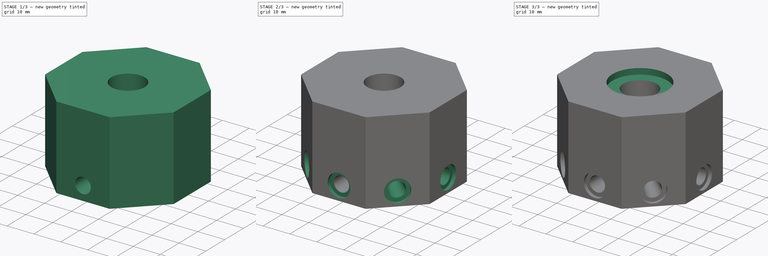
[diagram: build sequence overview — one tinted view per stage of 3, left to right]
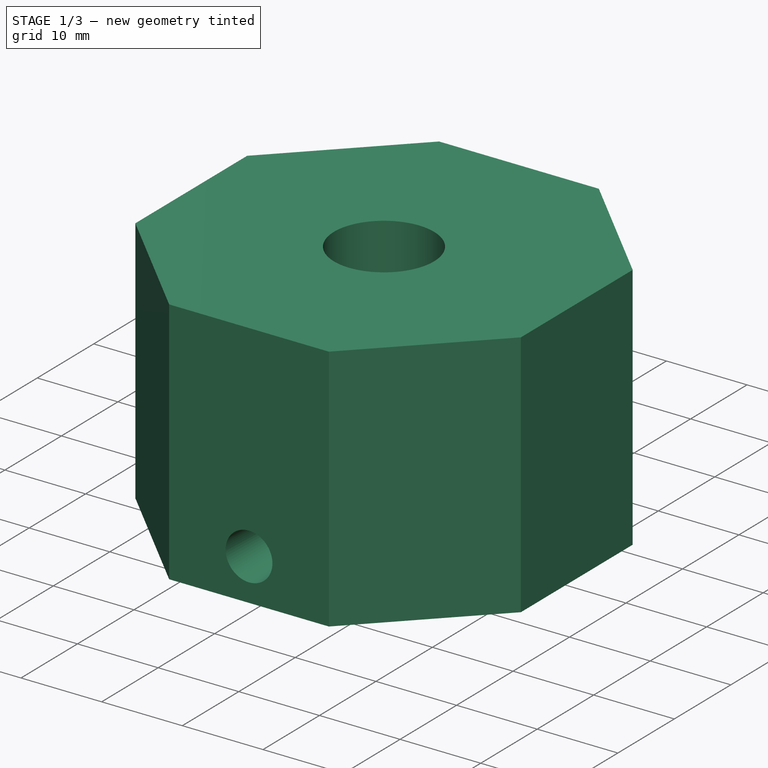
[diagram: stage 1 of 3 — iso view after this stage's code; geometry added in this stage tinted green]
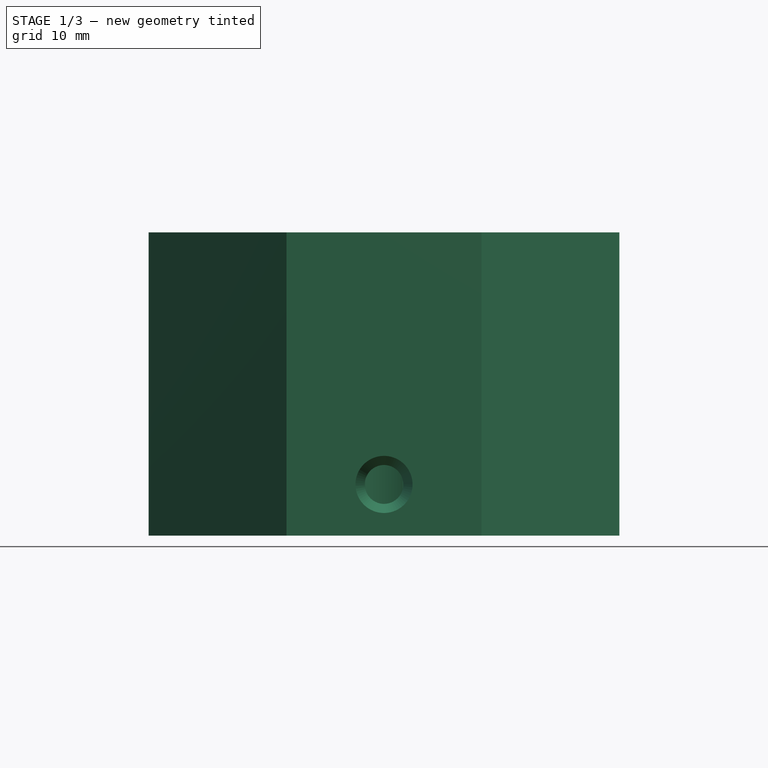
[diagram: stage 1 of 3 — front view after this stage's code; geometry added in this stage tinted green]
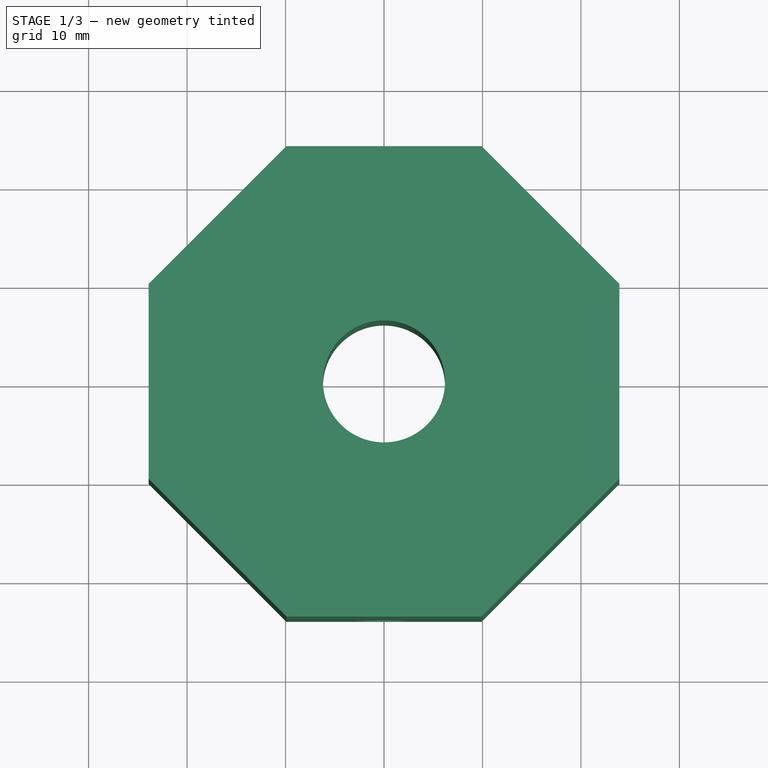
[diagram: stage 1 of 3 — top view after this stage's code; geometry added in this stage tinted green]
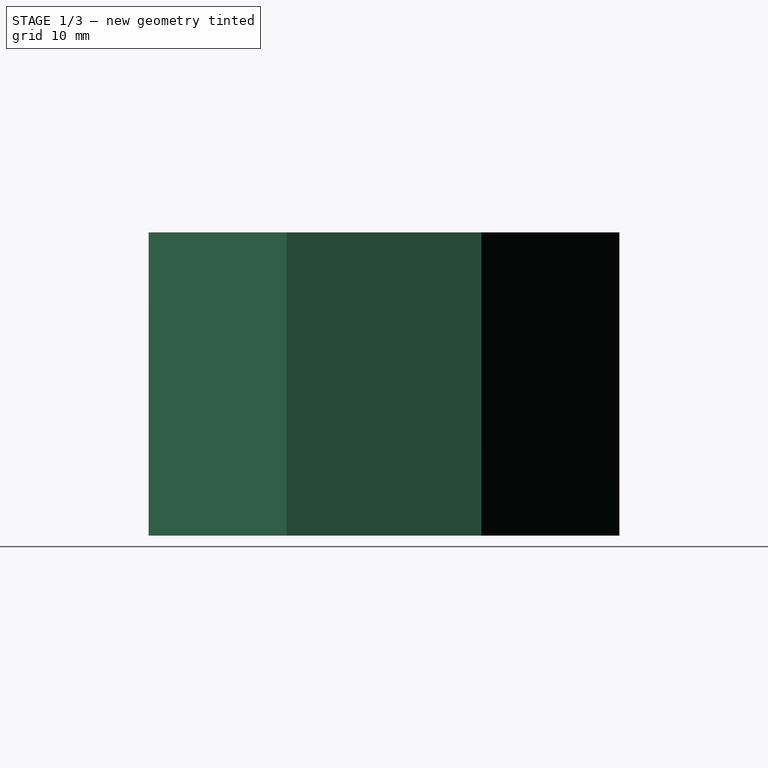
[diagram: stage 1 of 3 — right view after this stage's code; geometry added in this stage tinted green]
FCSTD DOCUMENT  (FreeCAD 0.21R33668 +26 (Git))
Label: LED Holder
License: All rights reserved
LicenseURL: http://en.wikipedia.org/wiki/All_rights_reserved
objects: Sketcher::SketchObject×5, PartDesign::Pocket×4, PartDesign::FeaturePython×2, Spreadsheet::Sheet×1, PartDesign::Pad×1, Part::Part2DObjectPython×1, PartDesign::Body×1
note: 19 computed .brp shape members not serialized (recipe doc carries the construction recipe); baked Part::Feature solids carry a one-line shape summary decoded from their .brp

FEATURE [Spreadsheet::Sheet] Data
  cells = A1='Part; B1='SP1; C1='SP2; D1='SP3; E1='SP4; F1='SP5; G1='Size (mm); H1='Shape; I1='External References; N1='Design specification; A2='LED holder; B2='base; C2='Octagon; D2='Side ; F2='Length; G2==P12 - P3; H2='Octagon with concentric circle; I2='Object; J2='Subpart; K2='Measure (mm); L2='Extra margin; N2='General; O2='Subpart; P2='Measure (mm); C3='Circle; F3='Diametre; G3==K8 + P3 * 2; H3='Circle; I3='LED; J3='Length with contacts; K3=15.8; L3=2; O3='General tolerance; P3=0.2; C4='Pad; F4='Depth; G4==35 - 2 * 2 - P3; I4='LED; J4='Diameter body; K4=8.12; O4='Wall thickness; P4=2; B5='Led Holder; C5='Distance to wall; F5='Length; G5==P11 - 2; H5='Circle; I5='LED; J5='Diameter Lens; K5=5.6; O5='Minimal thickness; P5=1; C6='LED hole; F6='Diametre; G6==K5 + P3; I6='LED; J6='Total Heightt; K6=5.8; N6='Cell; O6='Light Path length; P6=50; F7='Depth; G7=18; H7='Circle; I7='LED; J7='Body Heightt till contact; K7=1.5; O7='Light Path width; P7=5; C8='Body holder; F8='Diametre; G8==K4 + P3 * 1.5; I8='Glass Tube; J8='Exterior Diameter; K8=12; N8='Slide; O8='Height; P8=60; F9='Depth; G9==K7 - P3; H9='Circle; I9='Glass Tube; J9='Wall Thickness; K9=1; O9='Width; P9=60; B10='Spacing void Ring; F10='Diametre; G10==G3 + 8; I10='Glass Tube; J10='Interior Diameter; K10==K8 - 2 * K9; O10='Central Hole; P10=16; F11='Depth; G11=2.2; I11='Glass Tube; J11='Length; K11=35; N11='LED; O11='Distance to end of cell; P11==K10 / 2; I12='Tubing connector; J12='Connector Diameter; K12=5.1; O12='octagon side size; P12=20; I13='Tubing connector; J13='Connector Heightt; K13=13; I14='Tubing connector; J14='Stopper Diameter; K14=7.9; I15='Tubing connector; J15='Stopper Heightt; K15=2.7; I16='Glass window; J16='Width; K16=25.6; I17='Glass window; J17='Heightt; K17=25.6; I18='Glass window; J18='Thickness; K18=1; F19='<
FEATURE [Sketcher::SketchObject] Sketch
  FullyConstrained = true
  MapMode = 5
  Support = -> [XY_Plane]
  expr: Constraints[25] = <<Data>>.G2
  expr: Constraints[27] = <<Data>>.G3
  sketch-geometry (10):
    g0: LineSegment StartX=9.9 StartY=23.9007 StartZ=0 EndX=-9.9 EndY=23.9007 EndZ=0
    g1: LineSegment StartX=-9.9 StartY=23.9007 StartZ=0 EndX=-23.9007 EndY=9.9 EndZ=0
    g2: LineSegment StartX=-23.9007 StartY=9.9 StartZ=0 EndX=-23.9007 EndY=-9.9 EndZ=0
    g3: LineSegment StartX=-23.9007 StartY=-9.9 StartZ=0 EndX=-9.9 EndY=-23.9007 EndZ=0
    g4: LineSegment StartX=-9.9 StartY=-23.9007 StartZ=0 EndX=9.9 EndY=-23.9007 EndZ=0
    g5: LineSegment StartX=9.9 StartY=-23.9007 StartZ=0 EndX=23.9007 EndY=-9.9 EndZ=0
    g6: LineSegment StartX=23.9007 StartY=-9.9 StartZ=0 EndX=23.9007 EndY=9.9 EndZ=0
    g7: LineSegment StartX=23.9007 StartY=9.9 StartZ=0 EndX=9.9 EndY=23.9007 EndZ=0
    g8: Circle CenterX=0 CenterY=0 CenterZ=0 NormalX=0 NormalY=0 NormalZ=1 AngleXU=0 Radius=25.8699
    g9: Circle CenterX=0 CenterY=0 CenterZ=0 NormalX=0 NormalY=0 NormalZ=1 AngleXU=0 Radius=6.2
  constraints (22):
    c: Coincident(g0,g1)
    c: Coincident(g1,g2)
    c: Coincident(g2,g3)
    c: Coincident(g3,g4)
    c: Coincident(g4,g5)
    c: Coincident(g5,g6)
    c: Coincident(g6,g7)
    c: Coincident(g7,g0)
    c: Equal(g0, g1-g7) x7
    c: PointOnObject(g0,g8)
    c: PointOnObject(g1,g8)
    c: PointOnObject(g2,g8)
    c: PointOnObject(g3,g8)
    c: PointOnObject(g4,g8)
    c: PointOnObject(g5,g8)
    c: PointOnObject(g6,g8)
    c: PointOnObject(g7,g8)
    c: Coincident(g8,g-1)
    c: Horizontal(g0)
    c: DistanceX(g0,g0) = 19.8
    c: Coincident(g9,g8)
    c: Diameter(g9) = 12.4
FEATURE [PartDesign::Pad] Pad  label="base"
  Direction = (0,0,1)
  Length = 30.8
  Length2 = 10
  Profile = -> Sketch
  ReferenceAxis = -> Sketch [N_Axis]
  Type = 0
  expr: Label = <<Data>>.B2
  expr: Length = <<Data>>.G4
FEATURE [Sketcher::SketchObject] Sketch001
  FullyConstrained = true
  MapMode = 5
  Placement = pos=(4.3e-15,-23.9007,0) rot=(1,0,0;1.5708rad)
  Support = -> [Pad]
  expr: Constraints[1] = <<Data>>.G6
  expr: Constraints[2] = 5.2 mm
  sketch-geometry (1):
    g0: Circle CenterX=0 CenterY=5.2 CenterZ=0 NormalX=0 NormalY=0 NormalZ=1 AngleXU=0 Radius=2.9
  constraints (3):
    c: PointOnObject(g0,g-2)
    c: Diameter(g0) = 5.8
    c: DistanceY(g-1,g0) = 5.2
FEATURE [PartDesign::Pocket] Pocket  label="LED hole"
  BaseFeature = -> Pad
  Direction = (-2e-16,1,-2e-16)
  Length = 18
  Length2 = 5
  Profile = -> Sketch001
  ReferenceAxis = -> Sketch001 [N_Axis]
  TaperAngle = -3
  Type = 0
  expr: Label = <<Data>>.C6
  expr: Length = <<Data>>.G7
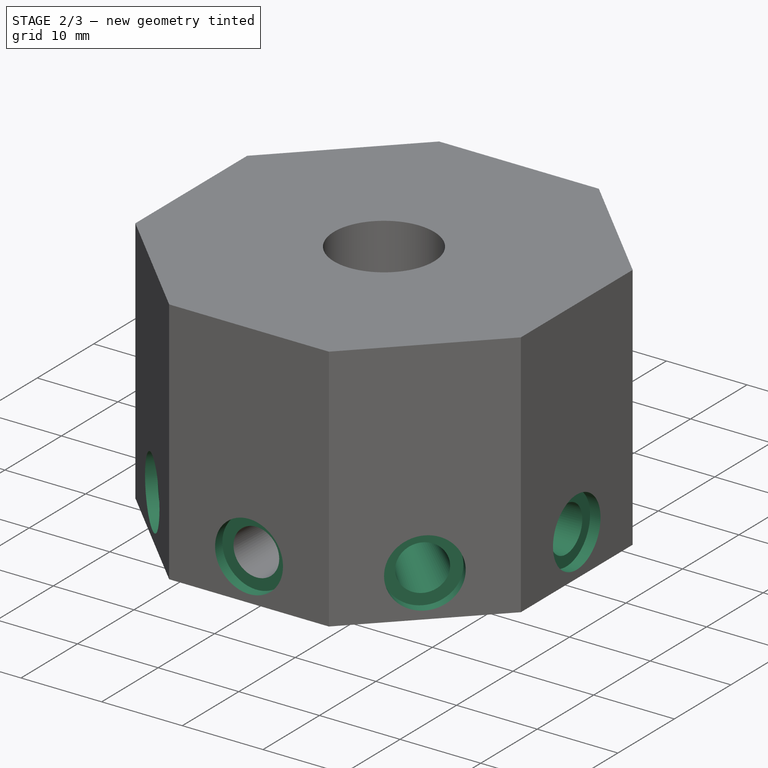
[diagram: stage 2 of 3 — iso view after this stage's code; geometry added in this stage tinted green]
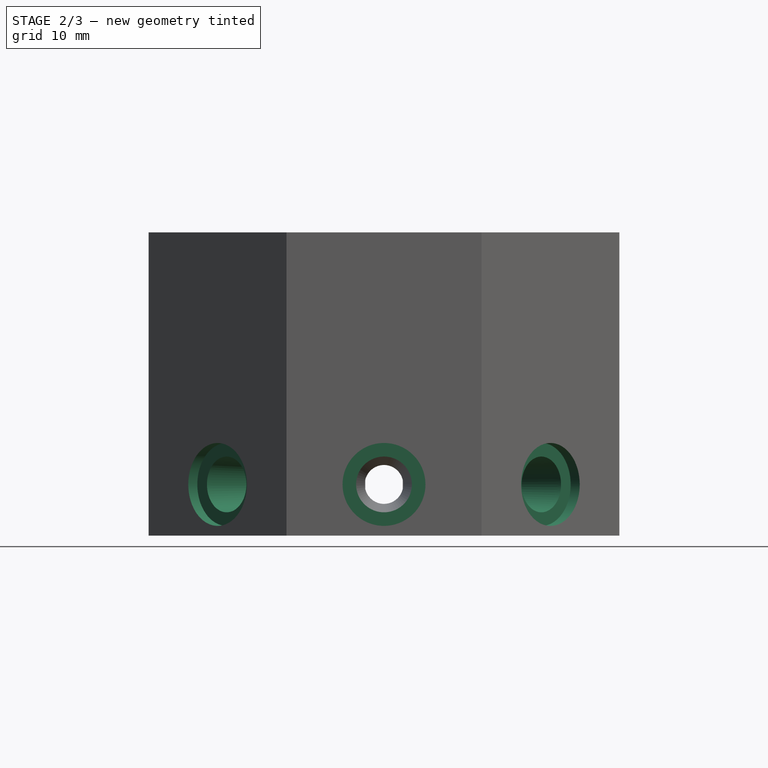
[diagram: stage 2 of 3 — front view after this stage's code; geometry added in this stage tinted green]
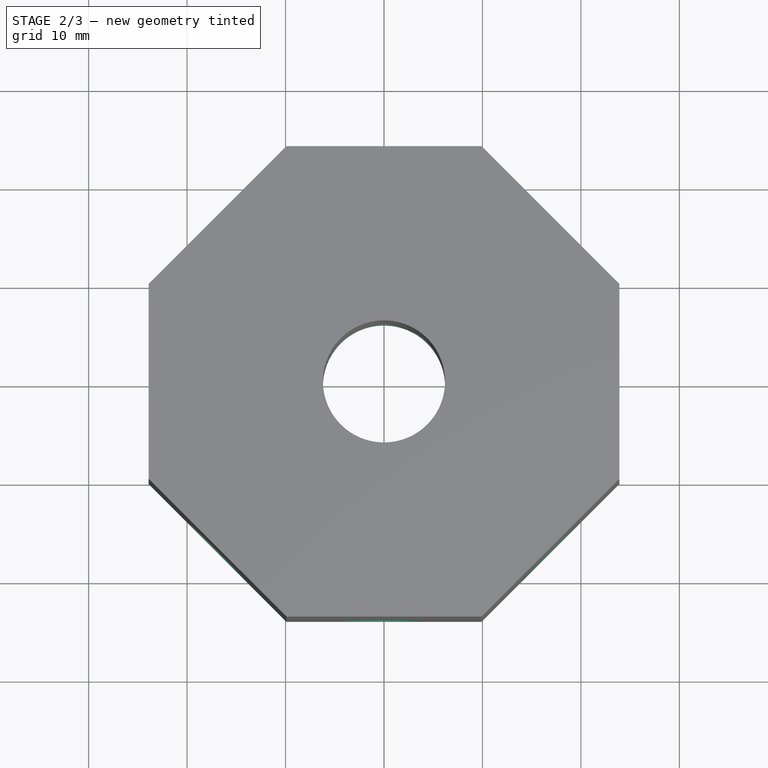
[diagram: stage 2 of 3 — top view after this stage's code; geometry added in this stage tinted green]
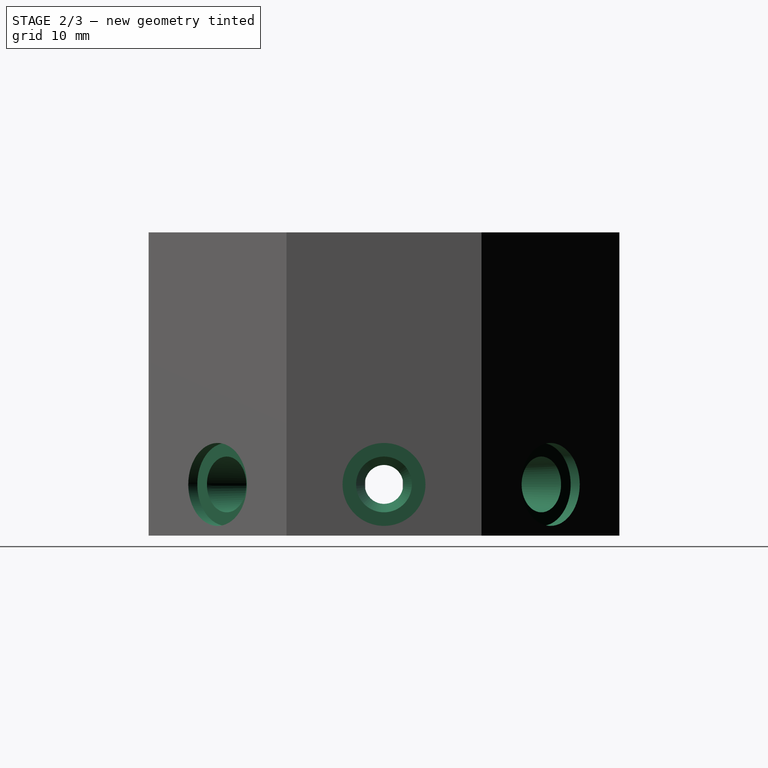
[diagram: stage 2 of 3 — right view after this stage's code; geometry added in this stage tinted green]
FEATURE [Part::Part2DObjectPython] PolarArray  # Draft 2D object (typed FeaturePython)
  Alignment = 0
  AttacherType = Attacher::AttachEngine3D
  CellStart = A1
  Count = 8
  DistributionLaw = 0
  EndInclusive = false
  ExposePlacement = false
  FlipX = false
  FlipZ = false
  GeneratorMode = 0
  MarkerShape = 1
  MarkerSize = 0
  NumElements = 8
  OrientMode = 2
  Radius = 25
  Reverse = false
  SpanEnd = 360
  SpanStart = 0
  Step = 45
  Support = -> [Pocket]
  Type = lattice2PolarArray2.PolarArray
  UseArcRadius = false
  UseArcRange = 0
  VSGVersion = 1
  Values = 0.0 | 45.0 | 90.0 | 135.0 | 180.0 | 225.0 | 270.0 | 315.0
  ValuesSource = 2
  isLattice = 1
FEATURE [PartDesign::FeaturePython] LatticePattern  # WARN: FeaturePython — macro-defined, semantics opaque (R4)
  BaseFeature = -> Pocket
  FeaturesToCopy = -> [Pocket]
  IgnoreUnsupported = false
  PlacementsTo = -> PolarArray
  Referencing = 1
  Selfintersections = false
  SignOverride = 0
  SkipFirstInBody = false
FEATURE [Sketcher::SketchObject] Sketch002
  ExternalGeometry = -> [LatticePattern]
  FullyConstrained = true
  MapMode = 5
  Placement = pos=(4.3e-15,-23.9007,0) rot=(1,0,0;1.5708rad)
  Support = -> [LatticePattern]
  expr: Constraints[0] = <<Data>>.G8
  sketch-geometry (1):
    g0: Circle CenterX=0 CenterY=5.2 CenterZ=0 NormalX=0 NormalY=0 NormalZ=1 AngleXU=0 Radius=4.21
  constraints (2):
    c: Diameter(g0) = 8.42
    c: Coincident(g0,g-3)
FEATURE [PartDesign::Pocket] Pocket001  label="Body holder"
  BaseFeature = -> LatticePattern
  Direction = (-2e-16,1,-2e-16)
  Length = 1.3
  Length2 = 5
  Profile = -> Sketch002
  ReferenceAxis = -> Sketch002 [N_Axis]
  Type = 0
  expr: Label = <<Data>>.C8
  expr: Length = <<Data>>.G9
FEATURE [PartDesign::FeaturePython] LatticePattern001  # WARN: FeaturePython — macro-defined, semantics opaque (R4)
  BaseFeature = -> Pocket001
  FeaturesToCopy = -> [Pocket001]
  IgnoreUnsupported = false
  PlacementsTo = -> PolarArray
  Referencing = 1
  Selfintersections = false
  SignOverride = 0
  SkipFirstInBody = false
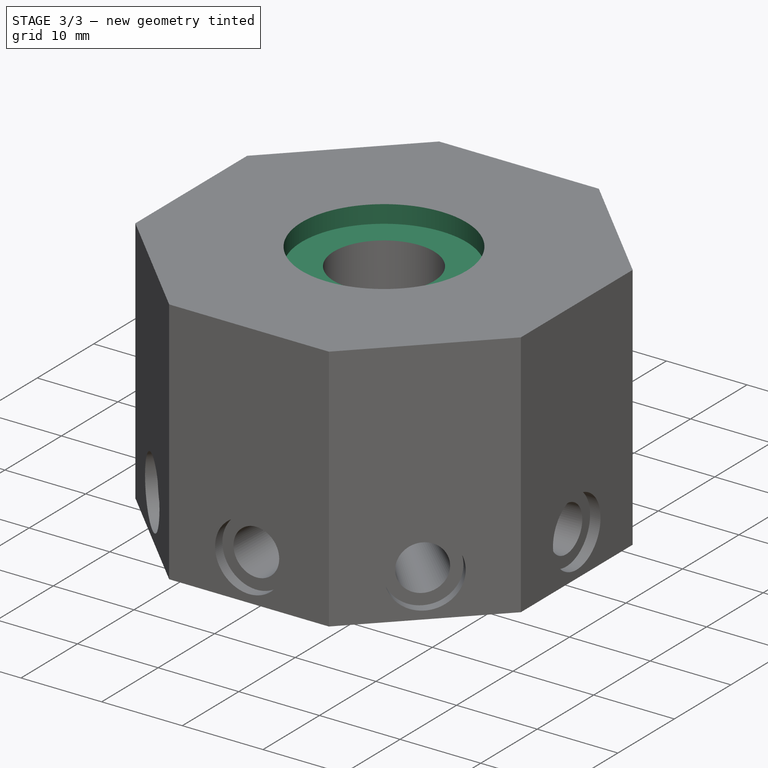
[diagram: stage 3 of 3 — iso view after this stage's code; geometry added in this stage tinted green]
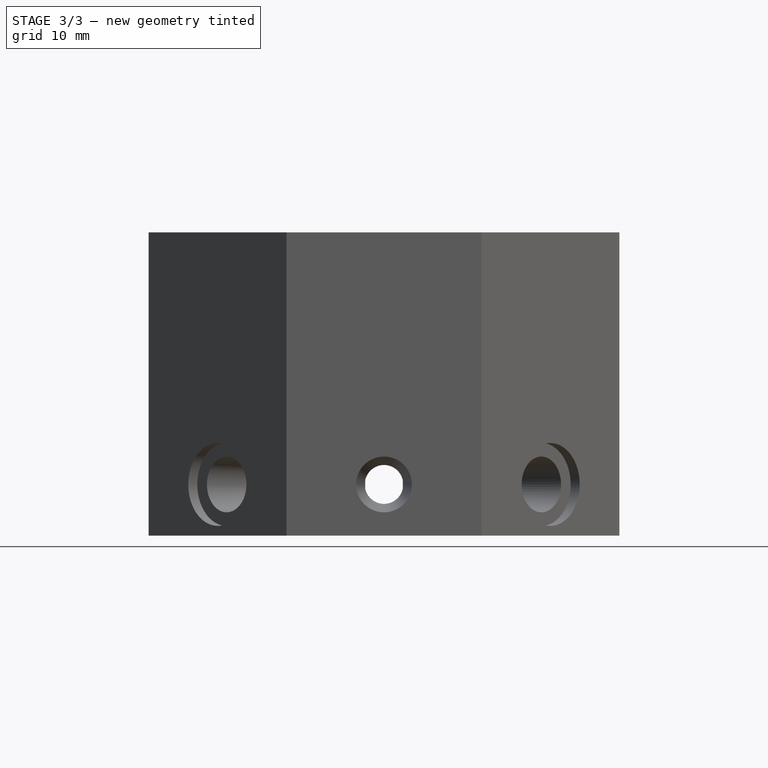
[diagram: stage 3 of 3 — front view after this stage's code; geometry added in this stage tinted green]
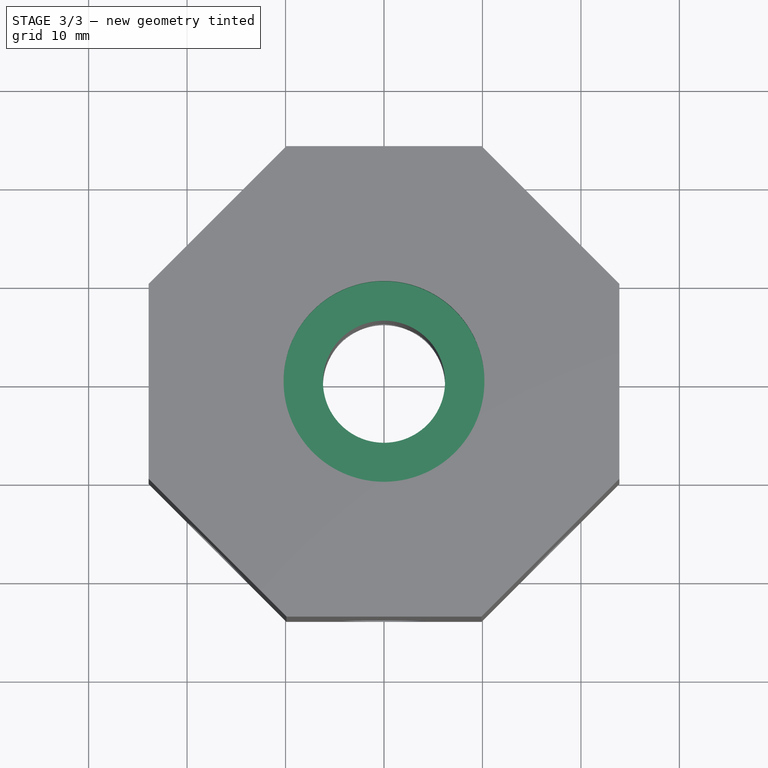
[diagram: stage 3 of 3 — top view after this stage's code; geometry added in this stage tinted green]
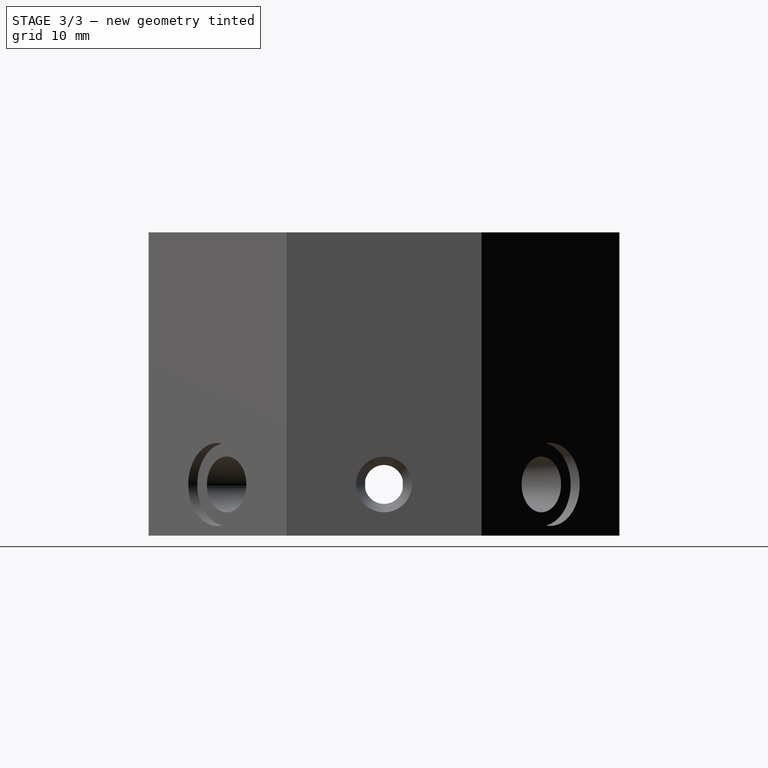
[diagram: stage 3 of 3 — right view after this stage's code; geometry added in this stage tinted green]
FEATURE [Sketcher::SketchObject] Sketch003
  FullyConstrained = true
  MapMode = 5
  Placement = pos=(0,0,0) rot=(1,0,0;3.14159rad)
  Support = -> [LatticePattern001]
  expr: Constraints[1] = <<Data>>.G10
  sketch-geometry (1):
    g0: Circle CenterX=0 CenterY=0 CenterZ=0 NormalX=0 NormalY=0 NormalZ=1 AngleXU=0 Radius=10.2
  constraints (2):
    c: Coincident(g0,g-1)
    c: Diameter(g0) = 20.4
FEATURE [PartDesign::Pocket] Pocket002
  BaseFeature = -> LatticePattern001
  Direction = (0,0,1)
  Length = 2.2
  Length2 = 5
  Profile = -> Sketch003
  ReferenceAxis = -> Sketch003 [N_Axis]
  Type = 0
  expr: Length = <<Data>>.G11
FEATURE [Sketcher::SketchObject] Sketch004
  FullyConstrained = true
  MapMode = 5
  Placement = pos=(0,0,30.8) rot=(0,0,1;0rad)
  Support = -> [Pocket002]
  expr: Constraints[1] = <<Data>>.G10
  sketch-geometry (1):
    g0: Circle CenterX=0 CenterY=0 CenterZ=0 NormalX=0 NormalY=0 NormalZ=1 AngleXU=0 Radius=10.2
  constraints (2):
    c: Coincident(g0,g-1)
    c: Diameter(g0) = 20.4
FEATURE [PartDesign::Pocket] Pocket003
  BaseFeature = -> Pocket002
  Direction = (0,0,-1)
  Length = 2.2
  Length2 = 5
  Profile = -> Sketch004
  ReferenceAxis = -> Sketch004 [N_Axis]
  Type = 0
  expr: Length = <<Data>>.G11
FEATURE [PartDesign::Body] Body  label="LED holder"
  Group = -> [Sketch,Pad,Sketch001,Pocket,PolarArray,LatticePattern,Sketch002,Pocket001,LatticePattern001,Sketch003,Pocket002,Sketch004,Pocket003]
  Origin = -> Origin
  Tip = -> Pocket003
  expr: Label = <<Data>>.A2
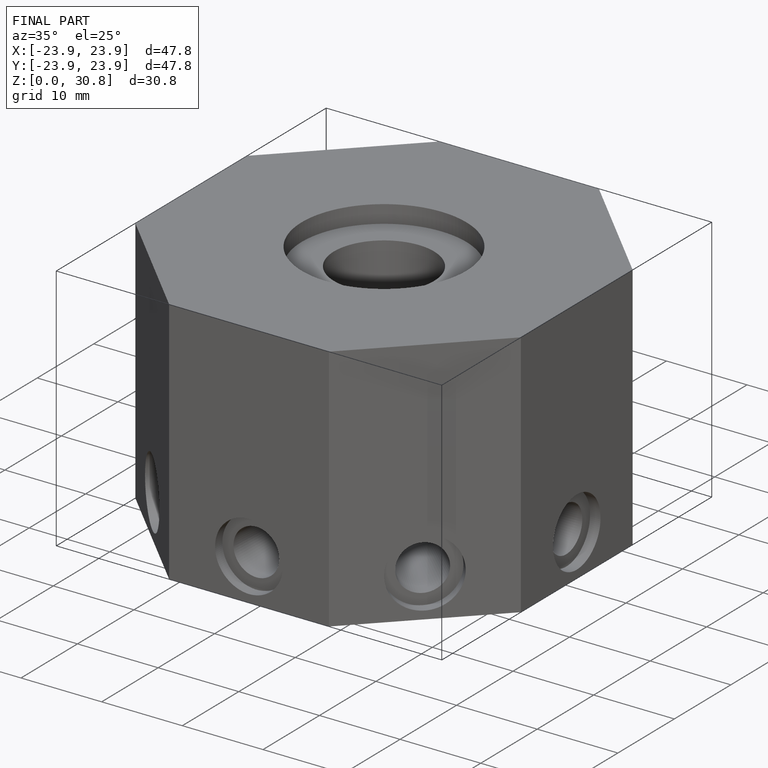
[diagram: finished part — iso view with bounding-box wireframe]
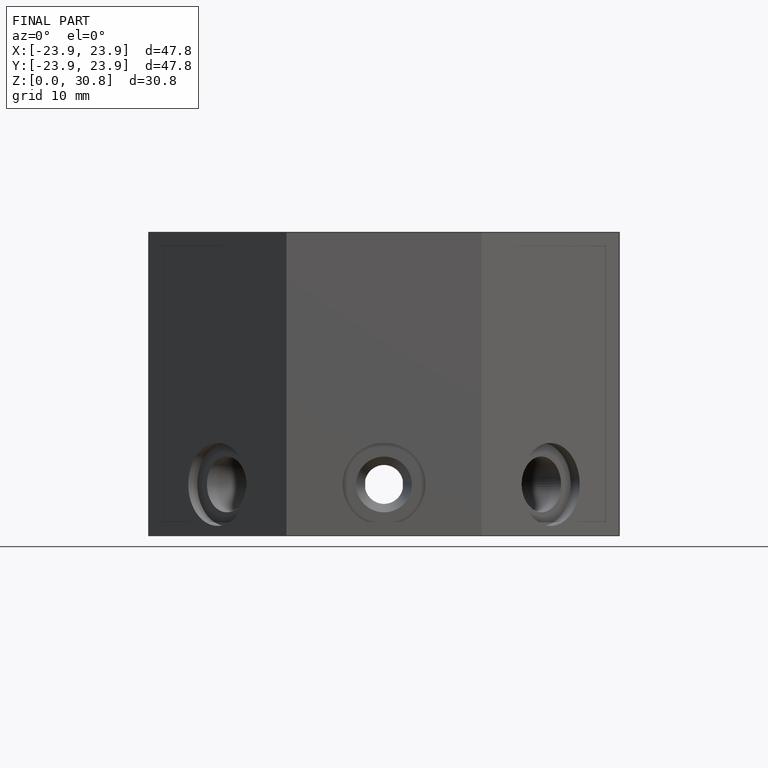
[diagram: finished part — front view with bounding-box wireframe]
